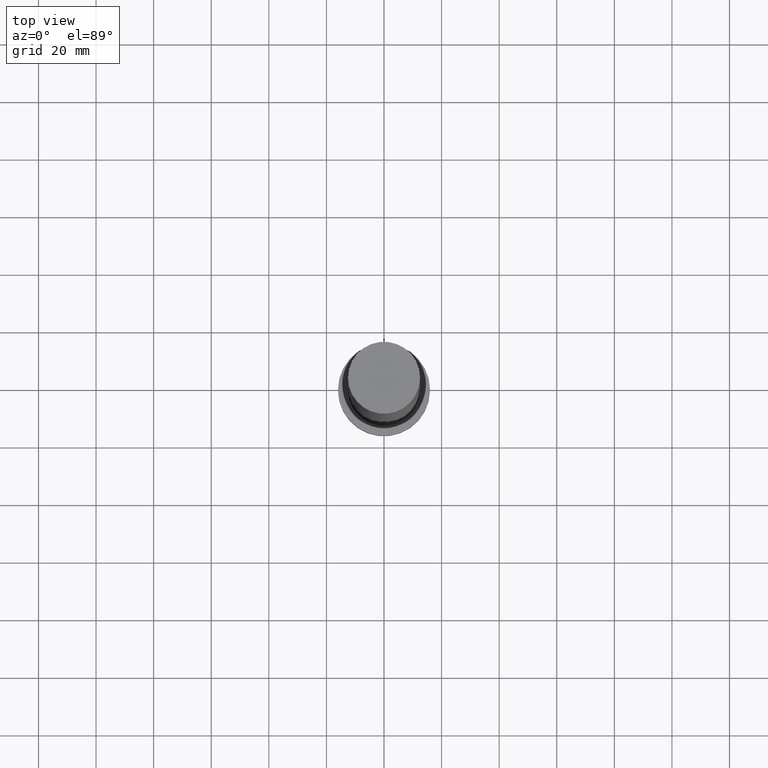
[diagram: clean part render]
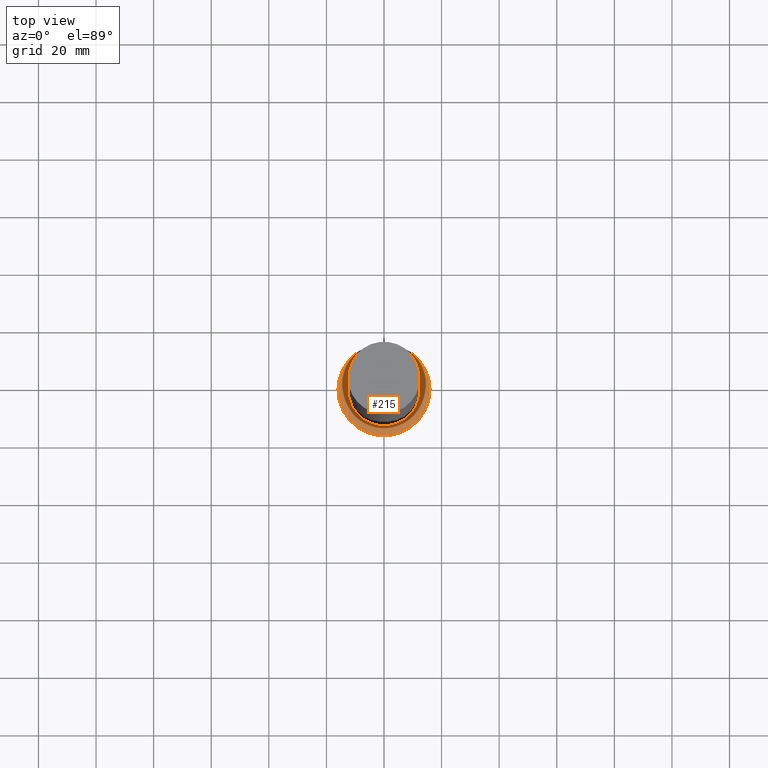
[diagram: same view with one face highlighted and labeled with its STEP entity id]
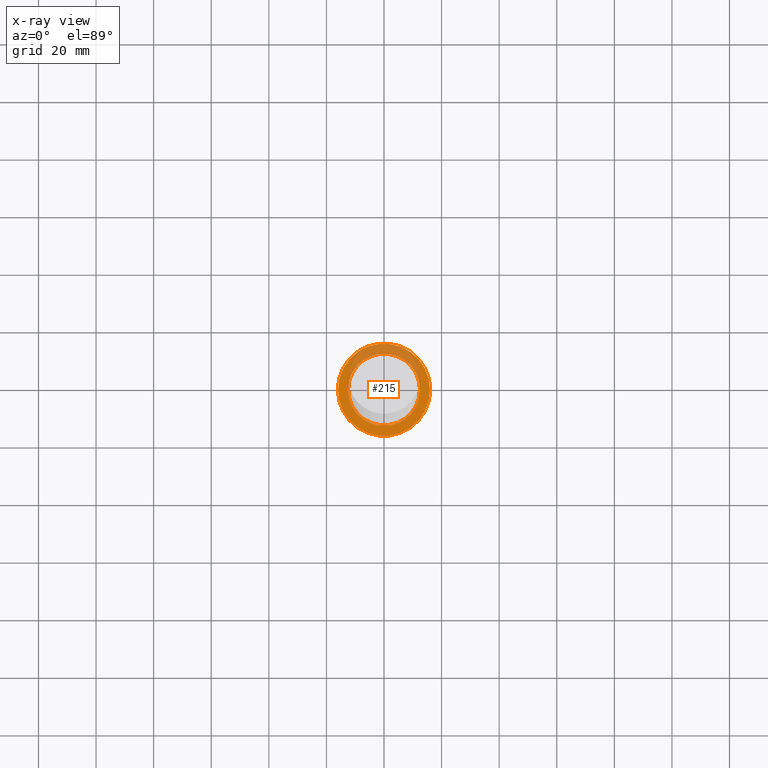
[diagram: x-ray of the same camera — body ghosted, the highlighted face saturated]
A machine part, top view. The second image highlights one B-rep face of the part: STEP entity #215.
The next image is the same camera in x-ray: the body ghosted, the highlighted face saturated — about 31% of this face is hidden behind the body in this view.
In plain terms, the highlighted planar face has unit normal (0, 0, 1).
Its self-contained STEP definition (entity closure, byte-faithful):
#3 = EDGE_CURVE ( 'NONE', #232, #156, #172, .T. ) ;
#11 = FACE_BOUND ( 'NONE', #67, .T. ) ;
#15 = AXIS2_PLACEMENT_3D ( 'NONE', #49, #123, #56 ) ;
#23 = EDGE_CURVE ( 'NONE', #156, #232, #37, .T. ) ;
#25 = ORIENTED_EDGE ( 'NONE', *, *, #23, .T. ) ;
#37 = CIRCLE ( 'NONE', #15, 16.00000000000000000 ) ;
#41 = VERTEX_POINT ( 'NONE', #72 ) ;
#45 = CIRCLE ( 'NONE', #59, 12.50000000000000000 ) ;
#49 = CARTESIAN_POINT ( 'NONE',  ( 0.000000000000000000, 0.000000000000000000, 10.00000000000000000 ) ) ;
#52 = DIRECTION ( 'NONE',  ( 1.000000000000000000, 0.000000000000000000, -0.000000000000000000 ) ) ;
#54 = CARTESIAN_POINT ( 'NONE',  ( 16.00000000000000000, 1.959434878635765131E-15, 10.00000000000000000 ) ) ;
#56 = DIRECTION ( 'NONE',  ( 1.000000000000000000, 0.000000000000000000, 0.000000000000000000 ) ) ;
#59 = AXIS2_PLACEMENT_3D ( 'NONE', #87, #101, #91 ) ;
#64 = CARTESIAN_POINT ( 'NONE',  ( 0.000000000000000000, 0.000000000000000000, 10.00000000000000000 ) ) ;
#67 = EDGE_LOOP ( 'NONE', ( #118, #221 ) ) ;
#72 = CARTESIAN_POINT ( 'NONE',  ( 12.50000000000000000, 1.530808498934191521E-15, 10.00000000000000000 ) ) ;
#74 = CARTESIAN_POINT ( 'NONE',  ( -16.00000000000000000, 0.000000000000000000, 10.00000000000000000 ) ) ;
#87 = CARTESIAN_POINT ( 'NONE',  ( 0.000000000000000000, 0.000000000000000000, 10.00000000000000000 ) ) ;
#90 = DIRECTION ( 'NONE',  ( 1.000000000000000000, 0.000000000000000000, 0.000000000000000000 ) ) ;
#91 = DIRECTION ( 'NONE',  ( 1.000000000000000000, 0.000000000000000000, 0.000000000000000000 ) ) ;
#101 = DIRECTION ( 'NONE',  ( 0.000000000000000000, 0.000000000000000000, 1.000000000000000000 ) ) ;
#102 = DIRECTION ( 'NONE',  ( 1.000000000000000000, 0.000000000000000000, 0.000000000000000000 ) ) ;
#115 = EDGE_CURVE ( 'NONE', #175, #41, #45, .T. ) ;
#118 = ORIENTED_EDGE ( 'NONE', *, *, #115, .F. ) ;
#121 = FACE_OUTER_BOUND ( 'NONE', #217, .T. ) ;
#123 = DIRECTION ( 'NONE',  ( 0.000000000000000000, 0.000000000000000000, 1.000000000000000000 ) ) ;
#125 = DIRECTION ( 'NONE',  ( 0.000000000000000000, 0.000000000000000000, 1.000000000000000000 ) ) ;
#142 = CARTESIAN_POINT ( 'NONE',  ( 0.000000000000000000, 0.000000000000000000, 10.00000000000000000 ) ) ;
#152 = CIRCLE ( 'NONE', #161, 12.50000000000000000 ) ;
#153 = AXIS2_PLACEMENT_3D ( 'NONE', #142, #205, #102 ) ;
#156 = VERTEX_POINT ( 'NONE', #74 ) ;
#161 = AXIS2_PLACEMENT_3D ( 'NONE', #64, #125, #90 ) ;
#163 = CARTESIAN_POINT ( 'NONE',  ( 0.000000000000000000, 0.000000000000000000, 10.00000000000000000 ) ) ;
#166 = CARTESIAN_POINT ( 'NONE',  ( -12.50000000000000000, 0.000000000000000000, 10.00000000000000000 ) ) ;
#170 = ORIENTED_EDGE ( 'NONE', *, *, #3, .T. ) ;
#172 = CIRCLE ( 'NONE', #153, 16.00000000000000000 ) ;
#175 = VERTEX_POINT ( 'NONE', #166 ) ;
#184 = AXIS2_PLACEMENT_3D ( 'NONE', #163, #229, #52 ) ;
#205 = DIRECTION ( 'NONE',  ( 0.000000000000000000, 0.000000000000000000, 1.000000000000000000 ) ) ;
#215 = ADVANCED_FACE ( 'NONE', ( #11, #121 ), #244, .T. ) ;
#217 = EDGE_LOOP ( 'NONE', ( #25, #170 ) ) ;
#221 = ORIENTED_EDGE ( 'NONE', *, *, #233, .F. ) ;
#229 = DIRECTION ( 'NONE',  ( 0.000000000000000000, 0.000000000000000000, 1.000000000000000000 ) ) ;
#232 = VERTEX_POINT ( 'NONE', #54 ) ;
#233 = EDGE_CURVE ( 'NONE', #41, #175, #152, .T. ) ;
#244 = PLANE ( 'NONE',  #184 ) ;